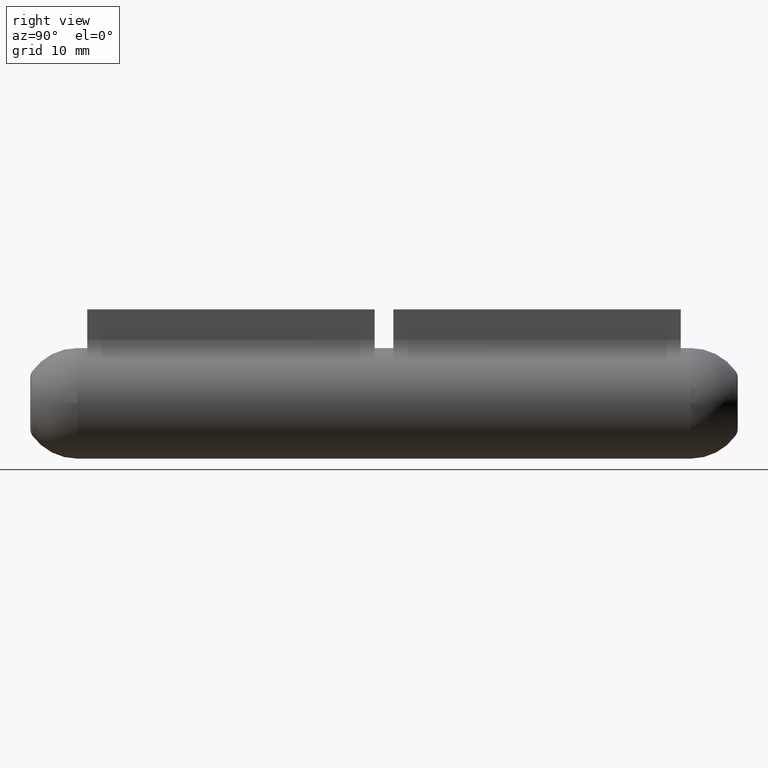
[diagram: clean part render]
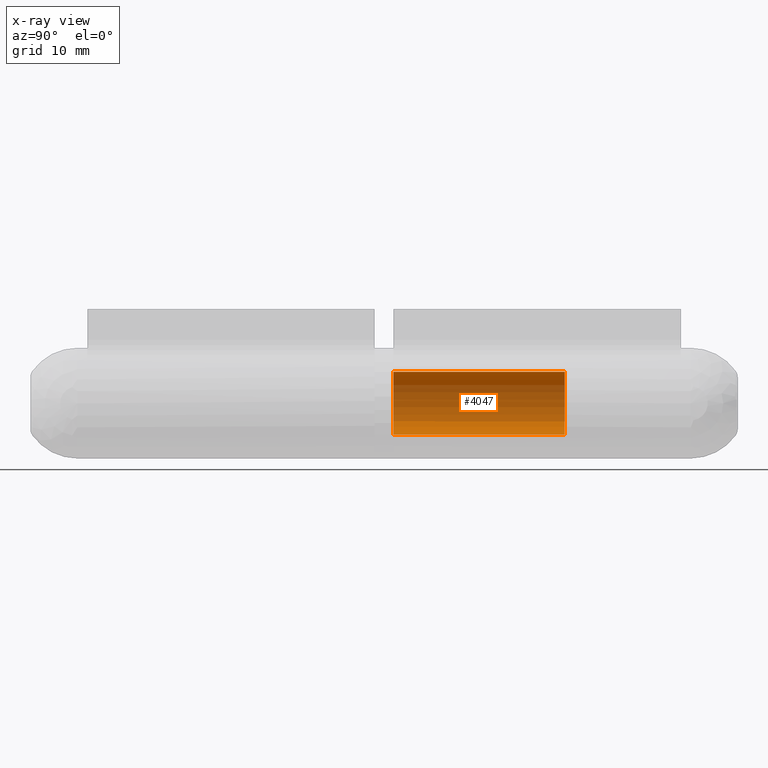
[diagram: x-ray — body ghosted, one internal face saturated and labeled with its STEP entity id]
A machine part, right view, then the same camera in x-ray: the body is ghosted and one INTERNAL B-rep face — a face not visible from any outside direction — is saturated and labeled: STEP entity #4047.
In plain terms, the highlighted cylindrical surface (edge-blend (fillet) strip) has radius 2.85 mm, axis along (-0, -1, -0).
Its self-contained STEP definition (entity closure, byte-faithful):
#333 = DIRECTION ( 'NONE',  ( 0.000000000000000000, -1.000000000000000000, 0.000000000000000000 ) ) ;
#1005 = EDGE_LOOP ( 'NONE', ( #12157, #1082, #13980, #13116 ) ) ;
#1062 = AXIS2_PLACEMENT_3D ( 'NONE', #11320, #333, #13556 ) ;
#1082 = ORIENTED_EDGE ( 'NONE', *, *, #13290, .T. ) ;
#1880 = VECTOR ( 'NONE', #11933, 1000.000000000000000 ) ;
#2103 = FACE_OUTER_BOUND ( 'NONE', #1005, .T. ) ;
#2212 = DIRECTION ( 'NONE',  ( 0.000000000000000000, 0.000000000000000000, 1.000000000000000000 ) ) ;
#2973 = CARTESIAN_POINT ( 'NONE',  ( 0.000000000000000000, 30.69999999999999929, 0.000000000000000000 ) ) ;
#3343 = DIRECTION ( 'NONE',  ( 0.000000000000000000, 1.000000000000000000, 0.000000000000000000 ) ) ;
#3452 = DIRECTION ( 'NONE',  ( -0.000000000000000000, -1.000000000000000000, -0.000000000000000000 ) ) ;
#3877 = LINE ( 'NONE', #9713, #1880 ) ;
#4047 = ADVANCED_FACE ( 'NONE', ( #2103 ), #7693, .T. ) ;
#4923 = EDGE_CURVE ( 'NONE', #5955, #6629, #9889, .T. ) ;
#5054 = CARTESIAN_POINT ( 'NONE',  ( 0.000000000000000000, 30.20000000000000284, -2.850000000000000089 ) ) ;
#5479 = EDGE_CURVE ( 'NONE', #9169, #12745, #3877, .T. ) ;
#5498 = EDGE_CURVE ( 'NONE', #12745, #6629, #7297, .T. ) ;
#5955 = VERTEX_POINT ( 'NONE', #10968 ) ;
#6077 = CARTESIAN_POINT ( 'NONE',  ( 3.490243377569956554E-16, 14.69999999999999929, 2.850000000000000089 ) ) ;
#6629 = VERTEX_POINT ( 'NONE', #6077 ) ;
#7297 = CIRCLE ( 'NONE', #12507, 2.850000000000000089 ) ;
#7423 = DIRECTION ( 'NONE',  ( -0.000000000000000000, -1.000000000000000000, -0.000000000000000000 ) ) ;
#7693 = CYLINDRICAL_SURFACE ( 'NONE', #13581, 2.850000000000000089 ) ;
#7854 = CARTESIAN_POINT ( 'NONE',  ( 3.490243377569956554E-16, 30.69999999999999929, 2.850000000000000089 ) ) ;
#9169 = VERTEX_POINT ( 'NONE', #5054 ) ;
#9561 = VECTOR ( 'NONE', #3452, 1000.000000000000000 ) ;
#9713 = CARTESIAN_POINT ( 'NONE',  ( 0.000000000000000000, 30.69999999999999929, -2.850000000000000089 ) ) ;
#9889 = LINE ( 'NONE', #7854, #9561 ) ;
#10968 = CARTESIAN_POINT ( 'NONE',  ( 3.490243377569956061E-16, 30.20000000000000284, 2.850000000000000089 ) ) ;
#11022 = DIRECTION ( 'NONE',  ( 0.000000000000000000, 0.000000000000000000, -1.000000000000000000 ) ) ;
#11320 = CARTESIAN_POINT ( 'NONE',  ( 0.000000000000000000, 30.20000000000000284, 0.000000000000000000 ) ) ;
#11876 = CIRCLE ( 'NONE', #1062, 2.850000000000000089 ) ;
#11933 = DIRECTION ( 'NONE',  ( -0.000000000000000000, -1.000000000000000000, -0.000000000000000000 ) ) ;
#12003 = CARTESIAN_POINT ( 'NONE',  ( 0.000000000000000000, 14.69999999999999929, -2.850000000000000089 ) ) ;
#12157 = ORIENTED_EDGE ( 'NONE', *, *, #4923, .F. ) ;
#12507 = AXIS2_PLACEMENT_3D ( 'NONE', #13081, #3343, #2212 ) ;
#12745 = VERTEX_POINT ( 'NONE', #12003 ) ;
#13081 = CARTESIAN_POINT ( 'NONE',  ( 0.000000000000000000, 14.69999999999999929, 0.000000000000000000 ) ) ;
#13116 = ORIENTED_EDGE ( 'NONE', *, *, #5498, .T. ) ;
#13290 = EDGE_CURVE ( 'NONE', #5955, #9169, #11876, .T. ) ;
#13556 = DIRECTION ( 'NONE',  ( 0.000000000000000000, 0.000000000000000000, 1.000000000000000000 ) ) ;
#13581 = AXIS2_PLACEMENT_3D ( 'NONE', #2973, #7423, #11022 ) ;
#13980 = ORIENTED_EDGE ( 'NONE', *, *, #5479, .T. ) ;